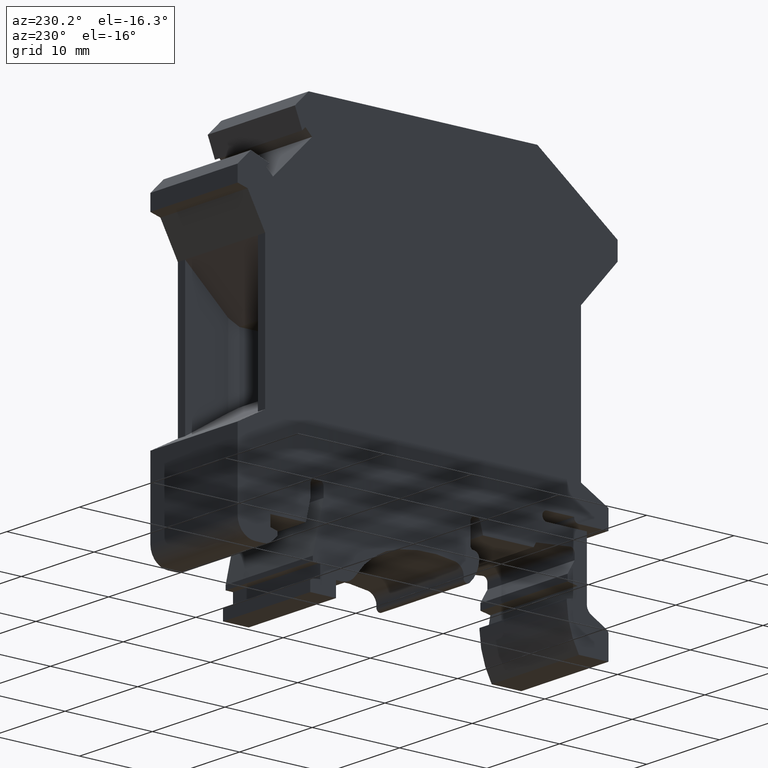
[diagram: clean part render]
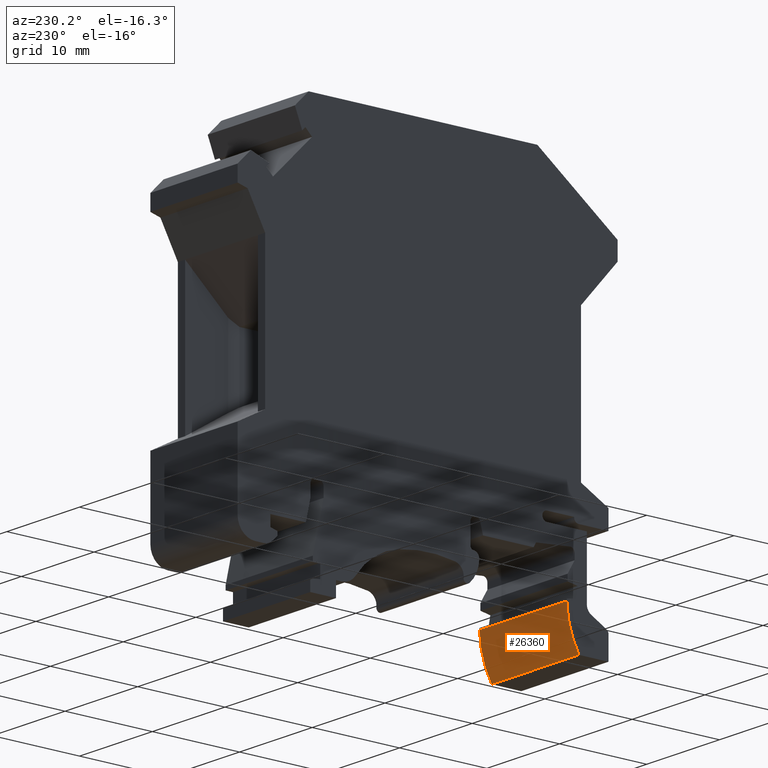
[diagram: same view with one face highlighted and labeled with its STEP entity id]
A machine part, auxiliary view. The second image highlights one B-rep face of the part: STEP entity #26360.
In plain terms, the highlighted cylindrical surface (partial cylindrical patch) has radius 9.5 mm, axis along (1, 0, 0).
Its self-contained STEP definition (entity closure, byte-faithful):
#4700=CARTESIAN_POINT('',(-160.619036097407,254.23784685869,-12.5));
#4710=DIRECTION('',(0.,0.,1.));
#4720=VECTOR('',#4710,1.);
#4730=LINE('',#4700,#4720);
#4740=CARTESIAN_POINT('',(-160.619036097407,254.23784685869,-12.));
#4750=VERTEX_POINT('',#4740);
#4760=CARTESIAN_POINT('',(-160.619036097407,254.23784685869,0.));
#4770=VERTEX_POINT('',#4760);
#4780=EDGE_CURVE('',#4750,#4770,#4730,.T.);
#26040=CARTESIAN_POINT('',(-170.11549221843,254.497310038134,-12.5));
#26050=DIRECTION('',(0.,0.,1.));
#26060=DIRECTION('',(1.,0.,0.));
#26070=AXIS2_PLACEMENT_3D('',#26040,#26050,#26060);
#26080=CYLINDRICAL_SURFACE('',#26070,9.5);
#26090=CARTESIAN_POINT('',(-162.01279359564,249.537846858691,-12.5));
#26100=DIRECTION('',(0.,0.,-1.));
#26110=VECTOR('',#26100,1.);
#26120=LINE('',#26090,#26110);
#26130=CARTESIAN_POINT('',(-162.01279359564,249.537846858691,
7.21644966006352E-16));
#26140=VERTEX_POINT('',#26130);
#26150=CARTESIAN_POINT('',(-162.01279359564,249.537846858691,-12.));
#26160=VERTEX_POINT('',#26150);
#26170=EDGE_CURVE('',#26140,#26160,#26120,.T.);
#26180=ORIENTED_EDGE('',*,*,#26170,.T.);
#26190=CARTESIAN_POINT('',(-170.11549221843,254.497310038134,
7.21644966006352E-16));
#26200=DIRECTION('',(0.,0.,1.));
#26210=DIRECTION('',(1.,0.,0.));
#26220=AXIS2_PLACEMENT_3D('',#26190,#26200,#26210);
#26230=CIRCLE('',#26220,9.5);
#26240=EDGE_CURVE('',#26140,#4770,#26230,.T.);
#26250=ORIENTED_EDGE('',*,*,#26240,.F.);
#26260=ORIENTED_EDGE('',*,*,#4780,.T.);
#26270=CARTESIAN_POINT('',(-170.11549221843,254.497310038134,-12.));
#26280=DIRECTION('',(0.,0.,1.));
#26290=DIRECTION('',(1.,0.,0.));
#26300=AXIS2_PLACEMENT_3D('',#26270,#26280,#26290);
#26310=CIRCLE('',#26300,9.5);
#26320=EDGE_CURVE('',#26160,#4750,#26310,.T.);
#26330=ORIENTED_EDGE('',*,*,#26320,.T.);
#26340=EDGE_LOOP('',(#26330,#26260,#26250,#26180));
#26350=FACE_OUTER_BOUND('',#26340,.T.);
#26360=ADVANCED_FACE('',(#26350),#26080,.T.);